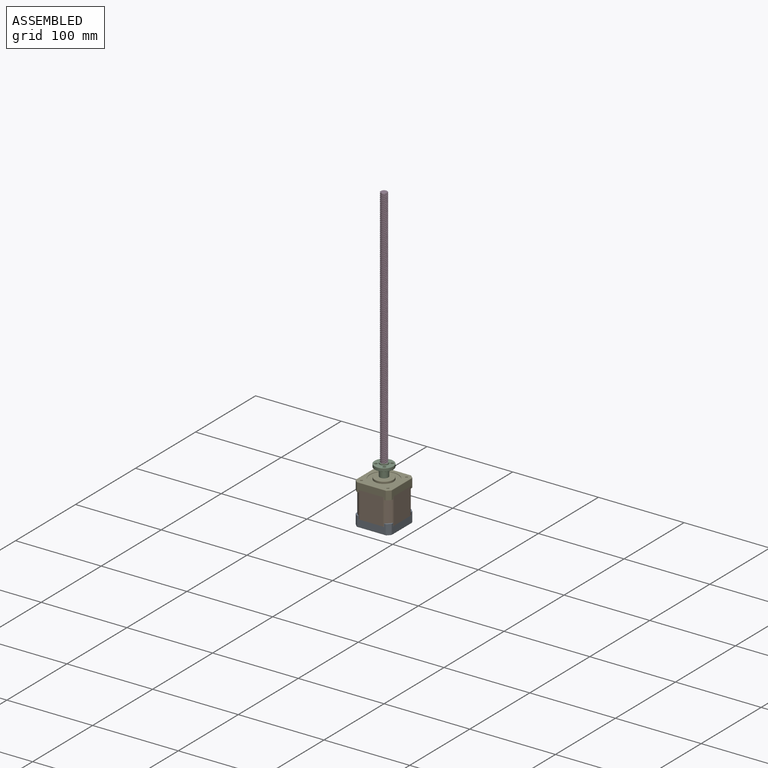
[diagram: assembled view]
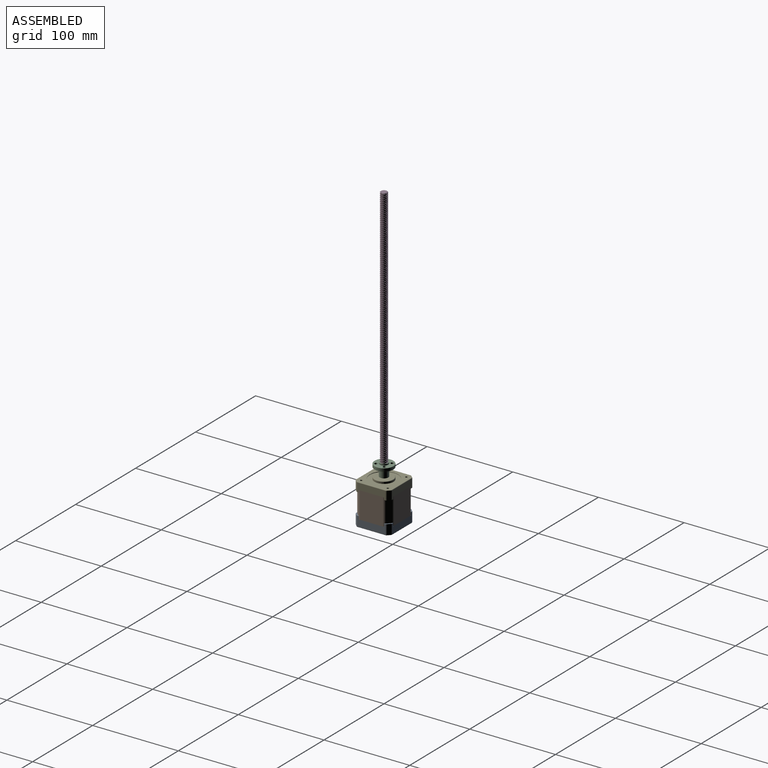
[diagram: assembled view, second angle]
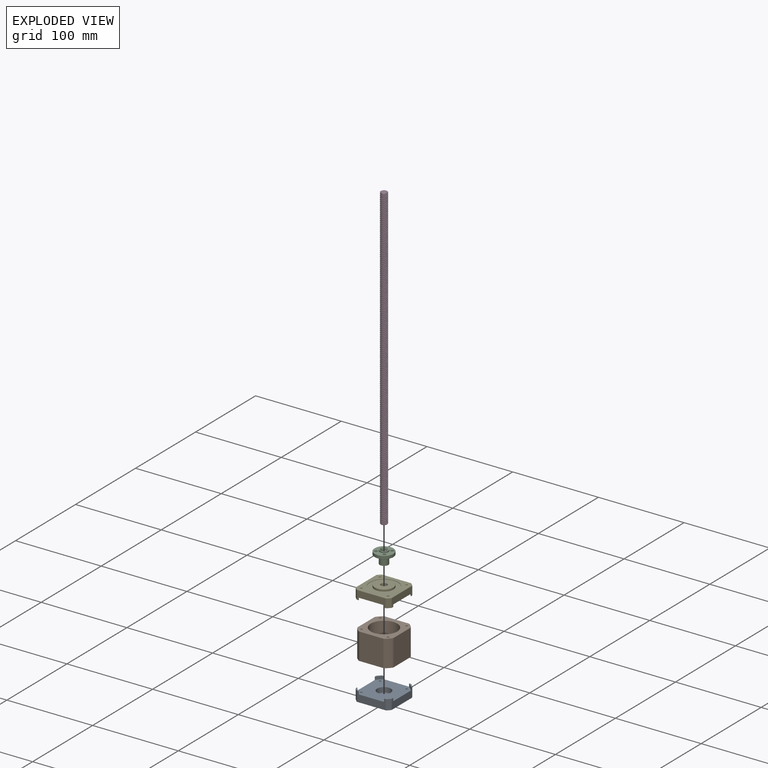
[diagram: exploded view]
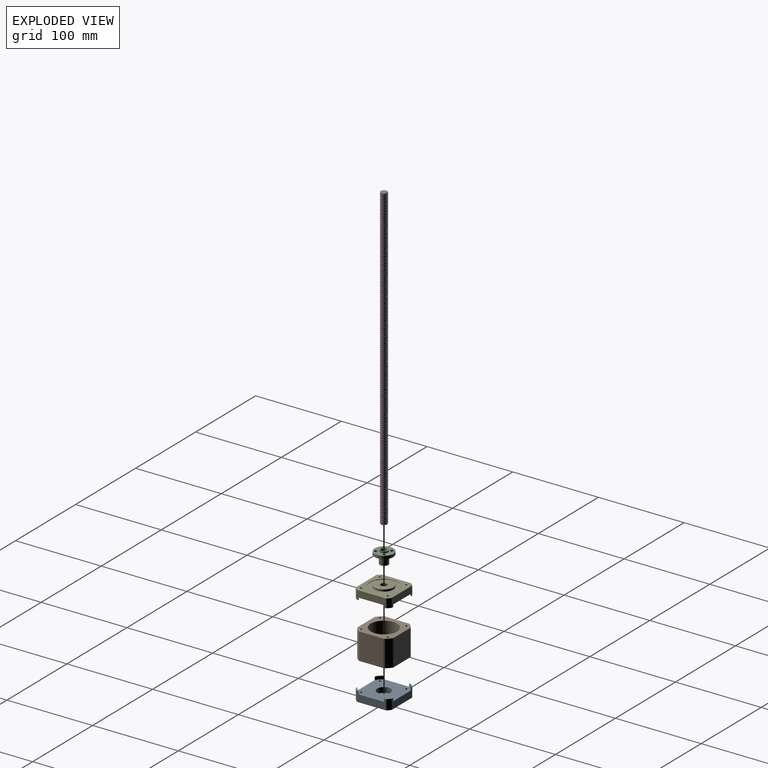
[diagram: exploded view, second angle]
ASSEMBLY  parts=5 mates=4
PART A: 53 faces, bbox 42.3x12x42.3 mm
  f0: cylinder r=4.5mm len=9mm, axis (0,-1,0), area 70.7mm2, adj f10,f28
  f1: plane 32.74x11.5mm, normal (0,0,1), area 274.1mm2, adj f9,f11,f13,f14,f16,f30,f31,f50
  f2: plane 32.74x11.5mm, normal (1,0,0), area 274.1mm2, adj f9,f11,f13,f20,f22,f29,f36,f42
  f3: plane 32.74x11.5mm, normal (0,0,-1), area 274.1mm2, adj f9,f17,f19,f20,f22,f34,f35,f39
  f4: plane 32.74x11.5mm, normal (-1,0,0), area 274.1mm2, adj f9,f14,f16,f17,f19,f32,f33,f47
  f5: cylinder r=1.25mm len=6mm, axis (0,-1,0), area 47.1mm2, adj f9,f26
  f6: cylinder r=1.25mm len=6mm, axis (0,-1,0), area 47.1mm2, adj f9,f25
  f7: cylinder r=1.25mm len=6mm, axis (0,-1,0), area 47.1mm2, adj f9,f24
  f8: cylinder r=1.25mm len=6mm, axis (0,-1,0), area 47.1mm2, adj f9,f23
  f9: plane 42x42mm, normal (0,1,0), area 1472mm2, adj f1,f2,f3,f4,f5,f6,f7,f8
  f10: plane 41x41mm, normal (0,-1,0), area 1415.7mm2, adj f0,f23,f24,f25,f26,f37,f38,f39
  f11: cylinder r=25.6mm len=6.36mm, axis (0,-1,0), area 31.6mm2, adj f1,f2,f9,f13
  f12: plane 11.5x2.63mm, normal (0.71,0,0.71), area 42.7mm2, adj f13,f29,f30,f46
  f13: plane 6.36x6.36mm, normal (0,1,0), area 10.4mm2, adj f1,f2,f11,f12,f29,f30
  f14: cylinder r=25.6mm len=6.36mm, axis (0,-1,0), area 31.6mm2, adj f1,f4,f9,f16
  f15: plane 11.5x2.63mm, normal (-0.71,0,0.71), area 42.7mm2, adj f16,f31,f32,f51
  f16: plane 6.36x6.36mm, normal (0,1,0), area 10.4mm2, adj f1,f4,f14,f15,f31,f32
  f17: cylinder r=25.6mm len=6.36mm, axis (0,-1,0), area 31.6mm2, adj f3,f4,f9,f19
  f18: plane 11.5x2.63mm, normal (-0.71,0,-0.71), area 42.7mm2, adj f19,f33,f34,f43
  f19: plane 6.36x6.36mm, normal (0,1,0), area 10.4mm2, adj f3,f4,f17,f18,f33,f34
  f20: cylinder r=25.6mm len=6.36mm, axis (0,-1,0), area 31.6mm2, adj f2,f3,f9,f22
  f21: plane 11.5x2.63mm, normal (0.71,0,-0.71), area 42.7mm2, adj f22,f35,f36,f38
  f22: plane 6.36x6.36mm, normal (0,1,0), area 10.4mm2, adj f2,f3,f20,f21,f35,f36
  f23: cone r=3.75mm half-angle=45deg, axis (0,-1,0), area 55.5mm2, adj f8,f10
  f24: cone r=3.75mm half-angle=45deg, axis (0,-1,0), area 55.5mm2, adj f7,f10
  f25: cone r=3.75mm half-angle=45deg, axis (0,-1,0), area 55.5mm2, adj f6,f10
  f26: cone r=3.75mm half-angle=45deg, axis (0,-1,0), area 55.5mm2, adj f5,f10
  f27: cylinder r=8mm len=16mm, axis (0,1,0), area 301.6mm2, adj f9,f28
  f28: plane 16x16mm, normal (0,1,0), area 137.4mm2, adj f0,f27
  f29: cylinder r=2mm len=11.5mm, axis (0,-1,0), area 18.1mm2, adj f2,f12,f13,f44
  f30: cylinder r=2mm len=11.5mm, axis (0,-1,0), area 18.1mm2, adj f1,f12,f13,f48
  f31: cylinder r=2mm len=11.5mm, axis (0,-1,0), area 18.1mm2, adj f1,f15,f16,f52
  f32: cylinder r=2mm len=11.5mm, axis (0,1,0), area 18.1mm2, adj f4,f15,f16,f49
  f33: cylinder r=2mm len=11.5mm, axis (0,-1,0), area 18.1mm2, adj f4,f18,f19,f45
  f34: cylinder r=2mm len=11.5mm, axis (0,-1,0), area 18.1mm2, adj f3,f18,f19,f41
  f35: cylinder r=2mm len=11.5mm, axis (0,-1,0), area 18.1mm2, adj f3,f21,f22,f37
  f36: cylinder r=2mm len=11.5mm, axis (0,1,0), area 18.1mm2, adj f2,f21,f22,f40
  f37: torus R=1.5mm, axis (0,1,0), area 1.1mm2, adj f10,f35,f38,f39
  f38: cylinder r=0.5mm len=2.98mm, axis (-0.71,0,-0.71), area 2.9mm2, adj f10,f21,f37,f40
  f39: cylinder r=0.5mm len=32.74mm, axis (-1,0,0), area 25.7mm2, adj f3,f10,f37,f41
  f40: torus R=1.5mm, axis (0,1,0), area 1.1mm2, adj f10,f36,f38,f42
  f41: torus R=1.5mm, axis (0,1,0), area 1.1mm2, adj f10,f34,f39,f43
  f42: cylinder r=0.5mm len=32.74mm, axis (0,0,-1), area 25.7mm2, adj f2,f10,f40,f44
  f43: cylinder r=0.5mm len=2.98mm, axis (-0.71,0,0.71), area 2.9mm2, adj f10,f18,f41,f45
  f44: torus R=1.5mm, axis (0,1,0), area 1.1mm2, adj f10,f29,f42,f46
  f45: torus R=1.5mm, axis (0,1,0), area 1.1mm2, adj f10,f33,f43,f47
  f46: cylinder r=0.5mm len=2.98mm, axis (0.71,0,-0.71), area 2.9mm2, adj f10,f12,f44,f48
  f47: cylinder r=0.5mm len=32.74mm, axis (0,0,1), area 25.7mm2, adj f4,f10,f45,f49
  f48: torus R=1.5mm, axis (0,1,0), area 1.1mm2, adj f10,f30,f46,f50
  f49: torus R=1.5mm, axis (0,1,0), area 1.1mm2, adj f10,f32,f47,f51
  f50: cylinder r=0.5mm len=32.74mm, axis (1,0,0), area 25.7mm2, adj f1,f10,f48,f52
  f51: cylinder r=0.5mm len=2.98mm, axis (0.71,0,0.71), area 2.9mm2, adj f10,f15,f49,f52
  f52: torus R=1.5mm, axis (0,1,0), area 1.1mm2, adj f10,f31,f50,f51
PART B: 23 faces, bbox 42x31x42 mm
  f0: plane 42x42mm, normal (0,1,0), area 916.8mm2, adj f1,f2,f3,f4,f5,f6,f7,f8
  f1: cylinder r=25.6mm len=31mm, axis (0,-1,0), area 191.4mm2, adj f0,f16,f17,f22
  f2: plane 31x26.65mm, normal (0,0,-1), area 826.2mm2, adj f0,f15,f16,f22
  f3: cylinder r=25.6mm len=31mm, axis (0,-1,0), area 191.4mm2, adj f0,f14,f15,f22
  f4: plane 31x26.65mm, normal (-1,0,0), area 826.2mm2, adj f0,f14,f21,f22
  f5: cylinder r=25.6mm len=31mm, axis (0,-1,0), area 191.4mm2, adj f0,f20,f21,f22
  f6: plane 31x26.65mm, normal (0,0,1), area 826.2mm2, adj f0,f19,f20,f22
  f7: cylinder r=25.6mm len=31mm, axis (0,-1,0), area 191.4mm2, adj f0,f18,f19,f22
  f8: plane 31x26.65mm, normal (1,0,0), area 826.2mm2, adj f0,f17,f18,f22
  f9: cylinder r=15.5mm len=31mm, axis (0,-1,0), area 3019.1mm2, adj f0,f22
  f10: cylinder r=1.25mm len=31mm, axis (0,-1,0), area 243.5mm2, adj f0,f22
  f11: cylinder r=1.25mm len=31mm, axis (0,-1,0), area 243.5mm2, adj f0,f22
  f12: cylinder r=1.25mm len=31mm, axis (0,-1,0), area 243.5mm2, adj f0,f22
  f13: cylinder r=1.25mm len=31mm, axis (0,-1,0), area 243.5mm2, adj f0,f22
  f14: cylinder r=4mm len=31mm, axis (0,-1,0), area 82.4mm2, adj f0,f3,f4,f22
  f15: cylinder r=4mm len=31mm, axis (0,-1,0), area 82.4mm2, adj f0,f2,f3,f22
  f16: cylinder r=4mm len=31mm, axis (0,-1,0), area 82.4mm2, adj f0,f1,f2,f22
  f17: cylinder r=4mm len=31mm, axis (0,-1,0), area 82.4mm2, adj f0,f1,f8,f22
  f18: cylinder r=4mm len=31mm, axis (0,-1,0), area 82.4mm2, adj f0,f7,f8,f22
  f19: cylinder r=4mm len=31mm, axis (0,-1,0), area 82.4mm2, adj f0,f6,f7,f22
  f20: cylinder r=4mm len=31mm, axis (0,-1,0), area 82.4mm2, adj f0,f5,f6,f22
  f21: cylinder r=4mm len=31mm, axis (0,-1,0), area 82.4mm2, adj f0,f4,f5,f22
  f22: plane 42x42mm, normal (0,-1,0), area 916.8mm2, adj f1,f2,f3,f4,f5,f6,f7,f8
PART C: 37 faces, bbox 22x22x16.4 mm
  f0: cylinder r=1.75mm len=3.7mm, axis (0,0,-1), area 40.7mm2, adj f5,f6
  f1: cylinder r=1.75mm len=3.7mm, axis (0,0,-1), area 40.7mm2, adj f5,f6
  f2: cylinder r=1.75mm len=3.7mm, axis (0,0,-1), area 40.7mm2, adj f5,f6
  f3: cylinder r=1.75mm len=3.7mm, axis (0,0,-1), area 40.7mm2, adj f5,f6
  f4: cylinder r=11mm len=22mm, axis (0,0,-1), area 228.1mm2, adj f27,f28
  f5: plane 21.6x21.6mm, normal (0,0,1), area 249.4mm2, adj f0,f1,f2,f3,f9,f28
  f6: plane 21.6x21.6mm, normal (0,0,-1), area 249.4mm2, adj f0,f1,f2,f3,f8,f27
  f7: plane 10x10mm, normal (0,0,-1), area 28.3mm2, adj f8,f11,f15,f19,f23,f29,f30,f31
  f8: cylinder r=5mm len=10mm, axis (0,0,-1), area 47.1mm2, adj f6,f7
  f9: cylinder r=5mm len=10mm, axis (0,0,-1), area 307.9mm2, adj f5,f10
  f10: plane 10x10mm, normal (0,0,1), area 28.3mm2, adj f9,f11,f15,f19,f23,f33,f34,f35
  f11: cylinder r=4mm len=15mm, axis (0,0,-1), area 47.1mm2, adj f7,f10,f14,f16
  f12: bspline ~16.13x8mm, area 23.3mm2, adj f13,f23,f30,f36
  f13: cylinder r=3.5mm len=14mm, axis (0,0,1), area 28.2mm2, adj f12,f14,f30,f36
  f14: bspline ~16.4x9mm, area 23.3mm2, adj f11,f13,f30,f36
  f15: cylinder r=4mm len=15mm, axis (0,0,-1), area 47.1mm2, adj f7,f10,f18,f20
  f16: bspline ~16.13x8mm, area 23.3mm2, adj f11,f17,f29,f35
  f17: cylinder r=3.5mm len=14mm, axis (0,0,1), area 28.2mm2, adj f16,f18,f29,f35
  f18: bspline ~16.4x9mm, area 23.3mm2, adj f15,f17,f29,f35
  f19: cylinder r=4mm len=15mm, axis (0,0,-1), area 47.1mm2, adj f7,f10,f22,f25
  f20: bspline ~16.13x8mm, area 23.3mm2, adj f15,f21,f32,f34
  f21: cylinder r=3.5mm len=14mm, axis (0,0,1), area 28.2mm2, adj f20,f22,f32,f34
  f22: bspline ~16.4x9mm, area 23.3mm2, adj f19,f21,f32,f34
  f23: cylinder r=4mm len=15mm, axis (0,0,-1), area 47.1mm2, adj f7,f10,f12,f26
  f24: cylinder r=3.5mm len=14mm, axis (0,0,1), area 28.2mm2, adj f25,f26,f31,f33
  f25: bspline ~16.13x8mm, area 23.3mm2, adj f19,f24,f31,f33
  f26: bspline ~16.4x9mm, area 23.3mm2, adj f23,f24,f31,f33
  f27: cone r=11mm half-angle=45deg, axis (0,0,1), area 19.4mm2, adj f4,f6
  f28: cone r=10.8mm half-angle=45deg, axis (0,0,-1), area 19.4mm2, adj f4,f5
  f29: cone r=4mm half-angle=45deg, axis (0,0,-1), area 1.8mm2, adj f7,f16,f17,f18
  f30: cone r=4mm half-angle=45deg, axis (0,0,-1), area 1.8mm2, adj f7,f12,f13,f14
  f31: cone r=4mm half-angle=45deg, axis (0,0,-1), area 1.8mm2, adj f7,f24,f25,f26
  f32: cone r=4mm half-angle=45deg, axis (0,0,-1), area 1.8mm2, adj f7,f20,f21,f22
  f33: cone r=3.5mm half-angle=45deg, axis (0,0,1), area 1.8mm2, adj f10,f24,f25,f26
  f34: cone r=3.5mm half-angle=45deg, axis (0,0,1), area 1.8mm2, adj f10,f20,f21,f22
  f35: cone r=3.5mm half-angle=45deg, axis (0,0,1), area 1.8mm2, adj f10,f16,f17,f18
  f36: cone r=3.5mm half-angle=45deg, axis (0,0,1), area 1.8mm2, adj f10,f12,f13,f14
PART D: 26 faces, bbox 2424.7x2424.7x675.6 mm
  f0: cone r=4mm half-angle=45deg, axis (0,0,1), area 2.4mm2, adj f3,f19,f20,f23
  f1: cylinder r=4mm len=349mm, axis (0,0,-1), area 1095.6mm2, adj f5,f6,f8,f9
  f2: cone r=3.5mm half-angle=45deg, axis (0,0,-1), area 2.3mm2, adj f3,f18,f19,f23
  f3: bspline ~351.13x8mm, area 561.2mm2, adj f0,f2,f4,f19
  f4: cylinder r=3.5mm len=350mm, axis (0,0,1), area -492.9mm2, adj f3,f5,f18,f20
  f5: bspline ~1216.84x675.61mm, area 561.4mm2, adj f1,f4,f6,f8
  f6: cone r=4mm half-angle=45deg, axis (0,0,1), area 2.4mm2, adj f1,f5,f9,f20
  f7: cylinder r=4mm len=349mm, axis (0,0,-1), area 1095.6mm2, adj f11,f12,f14,f15
  f8: cone r=3.5mm half-angle=45deg, axis (0,0,-1), area 2.3mm2, adj f1,f5,f9,f18
  f9: bspline ~351.13x8mm, area 561.2mm2, adj f1,f6,f8,f10
  f10: cylinder r=3.5mm len=350mm, axis (0,0,1), area -492.9mm2, adj f9,f11,f18,f20
  f11: bspline ~1216.84x675.61mm, area 561.4mm2, adj f7,f10,f12,f14
  f12: cone r=4mm half-angle=45deg, axis (0,0,1), area 2.4mm2, adj f7,f11,f15,f20
  f13: cylinder r=4mm len=349mm, axis (0,0,-1), area 1095.6mm2, adj f17,f22,f24,f25
  f14: cone r=3.5mm half-angle=45deg, axis (0,0,-1), area 2.3mm2, adj f7,f11,f15,f18
  f15: bspline ~351.13x8mm, area 561.2mm2, adj f7,f12,f14,f16
  f16: cylinder r=3.5mm len=350mm, axis (0,0,1), area -492.9mm2, adj f15,f17,f18,f20
  f17: bspline ~1216.84x675.61mm, area 561.4mm2, adj f13,f16,f24,f25
  f18: plane 7x7mm, normal (0,0,1), area 38.5mm2, adj f2,f4,f8,f10,f14,f16,f21,f24
  f19: cylinder r=4mm len=349mm, axis (0,0,-1), area 1095.6mm2, adj f0,f2,f3,f23
  f20: plane 7x7mm, normal (0,0,-1), area 38.5mm2, adj f0,f4,f6,f10,f12,f16,f21,f25
  f21: cylinder r=3.5mm len=350mm, axis (0,0,1), area -492.9mm2, adj f18,f20,f22,f23
  f22: bspline ~351.13x8mm, area 561.2mm2, adj f13,f21,f24,f25
  f23: bspline ~1216.84x675.61mm, area 561.4mm2, adj f0,f2,f19,f21
  f24: cone r=3.5mm half-angle=45deg, axis (0,0,-1), area 2.3mm2, adj f13,f17,f18,f22
  f25: cone r=4mm half-angle=45deg, axis (0,0,1), area 2.4mm2, adj f13,f17,f20,f22
PART E: 59 faces, bbox 42.3x12.6x42.3 mm
  f0: cylinder r=3.65mm len=7.3mm, axis (0,-1,0), area 20.6mm2, adj f28,f53
  f1: plane 42x42mm, normal (0,-1,0), area 1472mm2, adj f2,f4,f6,f8,f9,f10,f11,f14
  f2: plane 32.74x10.1mm, normal (0,0,1), area 254.6mm2, adj f1,f19,f20,f21,f22,f30,f31,f51
  f3: plane 10.1x2.63mm, normal (0.71,0,0.71), area 37.5mm2, adj f22,f29,f30,f47
  f4: plane 32.74x10.1mm, normal (1,0,0), area 254.6mm2, adj f1,f21,f22,f25,f26,f29,f36,f43
  f5: plane 10.1x2.63mm, normal (0.71,0,-0.71), area 37.5mm2, adj f26,f35,f36,f39
  f6: plane 32.74x10.1mm, normal (0,0,-1), area 254.6mm2, adj f1,f23,f24,f25,f26,f34,f35,f38
  f7: plane 10.1x2.63mm, normal (-0.71,0,-0.71), area 37.5mm2, adj f24,f33,f34,f42
  f8: plane 32.74x10.1mm, normal (-1,0,0), area 254.6mm2, adj f1,f19,f20,f23,f24,f32,f33,f46
  f9: cylinder r=1.25mm len=7.7mm, axis (0,-1,0), area 60.5mm2, adj f1,f58
  f10: cylinder r=1.25mm len=7.7mm, axis (0,-1,0), area 60.5mm2, adj f1,f57
  f11: cylinder r=1.25mm len=7.7mm, axis (0,-1,0), area 60.5mm2, adj f1,f56
  f12: plane 10.1x2.63mm, normal (-0.71,0,0.71), area 37.5mm2, adj f20,f31,f32,f50
  f13: cylinder r=16.5mm len=33mm, axis (0,-1,0), area 51.8mm2, adj f15,f16
  f14: cylinder r=1.25mm len=7.7mm, axis (0,-1,0), area 60.5mm2, adj f1,f55
  f15: plane 41x41mm, normal (0,1,0), area 770.5mm2, adj f13,f37,f38,f39,f40,f41,f42,f43
  f16: plane 33x33mm, normal (0,1,0), area 475.2mm2, adj f13,f17
  f17: cylinder r=11mm len=22mm, axis (0,-1,0), area 138.2mm2, adj f16,f54
  f18: plane 21x21mm, normal (0,1,0), area 292.3mm2, adj f53,f54
  f19: cylinder r=25.6mm len=6.36mm, axis (0,1,0), area 23.5mm2, adj f1,f2,f8,f20
  f20: plane 6.36x6.36mm, normal (0,-1,0), area 10.4mm2, adj f2,f8,f12,f19,f31,f32
  f21: cylinder r=25.6mm len=6.36mm, axis (0,1,0), area 23.5mm2, adj f1,f2,f4,f22
  f22: plane 6.36x6.36mm, normal (0,-1,0), area 10.4mm2, adj f2,f3,f4,f21,f29,f30
  f23: cylinder r=25.6mm len=6.36mm, axis (0,1,0), area 23.5mm2, adj f1,f6,f8,f24
  f24: plane 6.36x6.36mm, normal (0,-1,0), area 10.4mm2, adj f6,f7,f8,f23,f33,f34
  f25: cylinder r=25.6mm len=6.36mm, axis (0,1,0), area 23.5mm2, adj f1,f4,f6,f26
  f26: plane 6.36x6.36mm, normal (0,-1,0), area 10.4mm2, adj f4,f5,f6,f25,f35,f36
  f27: cylinder r=8mm len=16mm, axis (0,-1,0), area 432.3mm2, adj f1,f28
  f28: plane 16x16mm, normal (0,-1,0), area 159.2mm2, adj f0,f27
  f29: cylinder r=2mm len=10.1mm, axis (0,-1,0), area 15.9mm2, adj f3,f4,f22,f45
  f30: cylinder r=2mm len=10.1mm, axis (0,-1,0), area 15.9mm2, adj f2,f3,f22,f49
  f31: cylinder r=2mm len=10.1mm, axis (0,-1,0), area 15.9mm2, adj f2,f12,f20,f52
  f32: cylinder r=2mm len=10.1mm, axis (0,1,0), area 15.9mm2, adj f8,f12,f20,f48
  f33: cylinder r=2mm len=10.1mm, axis (0,-1,0), area 15.9mm2, adj f7,f8,f24,f44
  f34: cylinder r=2mm len=10.1mm, axis (0,-1,0), area 15.9mm2, adj f6,f7,f24,f40
  f35: cylinder r=2mm len=10.1mm, axis (0,-1,0), area 15.9mm2, adj f5,f6,f26,f37
  f36: cylinder r=2mm len=10.1mm, axis (0,1,0), area 15.9mm2, adj f4,f5,f26,f41
  f37: torus R=1.5mm, axis (0,1,0), area 1.1mm2, adj f15,f35,f38,f39
  f38: cylinder r=0.5mm len=32.74mm, axis (1,0,0), area 25.7mm2, adj f6,f15,f37,f40
  f39: cylinder r=0.5mm len=2.98mm, axis (0.71,0,0.71), area 2.9mm2, adj f5,f15,f37,f41
  f40: torus R=1.5mm, axis (0,1,0), area 1.1mm2, adj f15,f34,f38,f42
  f41: torus R=1.5mm, axis (0,1,0), area 1.1mm2, adj f15,f36,f39,f43
  f42: cylinder r=0.5mm len=2.98mm, axis (0.71,0,-0.71), area 2.9mm2, adj f7,f15,f40,f44
  f43: cylinder r=0.5mm len=32.74mm, axis (0,0,1), area 25.7mm2, adj f4,f15,f41,f45
  f44: torus R=1.5mm, axis (0,1,0), area 1.1mm2, adj f15,f33,f42,f46
  f45: torus R=1.5mm, axis (0,1,0), area 1.1mm2, adj f15,f29,f43,f47
  f46: cylinder r=0.5mm len=32.74mm, axis (0,0,-1), area 25.7mm2, adj f8,f15,f44,f48
  f47: cylinder r=0.5mm len=2.98mm, axis (-0.71,0,0.71), area 2.9mm2, adj f3,f15,f45,f49
  f48: torus R=1.5mm, axis (0,1,0), area 1.1mm2, adj f15,f32,f46,f50
  f49: torus R=1.5mm, axis (0,1,0), area 1.1mm2, adj f15,f30,f47,f51
  f50: cylinder r=0.5mm len=2.98mm, axis (-0.71,0,-0.71), area 2.9mm2, adj f12,f15,f48,f52
  f51: cylinder r=0.5mm len=32.74mm, axis (-1,0,0), area 25.7mm2, adj f2,f15,f49,f52
  f52: torus R=1.5mm, axis (0,1,0), area 1.1mm2, adj f15,f31,f50,f51
  f53: torus R=4.15mm, axis (0,1,0), area 18.9mm2, adj f0,f18
  f54: torus R=10.5mm, axis (0,1,0), area 53.4mm2, adj f17,f18
  f55: cone r=1.25mm half-angle=45deg, axis (0,1,0), area 3.7mm2, adj f14,f15
  f56: cone r=1.25mm half-angle=45deg, axis (0,1,0), area 3.7mm2, adj f11,f15
  f57: cone r=1.25mm half-angle=45deg, axis (0,1,0), area 3.7mm2, adj f10,f15
  f58: cone r=1.25mm half-angle=45deg, axis (0,1,0), area 3.7mm2, adj f9,f15
PLACE A rot(axis=(1,0,0),90deg) t=(0,0,0)mm
PLACE B rot(axis=(-1,0,0),90deg) t=(0,0,24.5)mm
PLACE C rot(axis=(0.66,-0.75,0),180deg) t=(0,0,71.5)mm
PLACE D rot(axis=(0,0,1),83.1deg) t=(0,0,0)mm
PLACE E rot(axis=(0.58,0.58,0.58),120deg) t=(0,0,39.5)mm
MATE fastened A.f6 <-> B.f11  axis (0,0,1) through (15.5,-15.5,8.5)mm
MATE revolute A.f0 <-> D.f0  axis (0,0,-1) through (0,0,0)mm
MATE fastened B.f11 <-> E.f14  axis (0,0,1) through (15.5,-15.5,39.5)mm
MATE cylindrical D.f10 <-> C.f11  axis (0,0,1) through (0,0,350)mm
